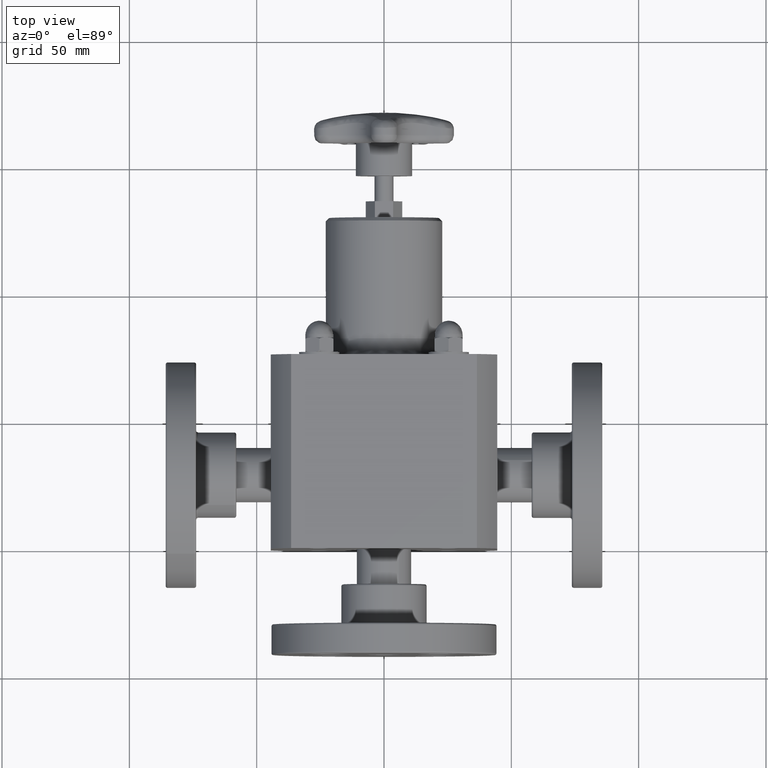
[diagram: clean part render]
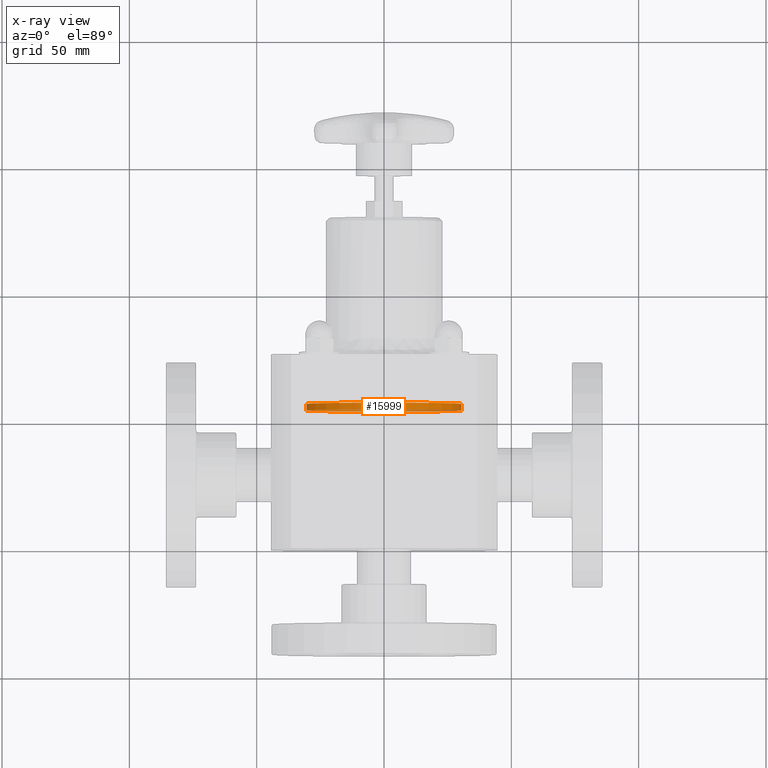
[diagram: x-ray — body ghosted, one internal face saturated and labeled with its STEP entity id]
A machine part, top view, then the same camera in x-ray: the body is ghosted and one INTERNAL B-rep face — a face not visible from any outside direction — is saturated and labeled: STEP entity #15999.
In plain terms, the highlighted cylindrical surface (bore or boss wall) has radius 30.48 mm, axis along (-0, 1, 0).
Its self-contained STEP definition (entity closure, byte-faithful):
#15972=CARTESIAN_POINT('',(-1.099121E-015,2.200000000000000,6.308368E-016));
#15973=DIRECTION('',(-4.996004E-016,1.0,2.867440E-016));
#15974=DIRECTION('',(-1.0,0.0,0.0));
#15975=AXIS2_PLACEMENT_3D('',#15972,#15973,#15974);
#15976=CYLINDRICAL_SURFACE('',#15975,1.200000000000000);
#15977=CARTESIAN_POINT('',(-1.200000000000001,2.250000000000000,5.486538E-016));
#15978=VERTEX_POINT('',#15977);
#15979=CARTESIAN_POINT('',(-1.124101E-015,2.250000000000000,6.451740E-016));
#15980=DIRECTION('',(0.0,-1.0,0.0));
#15981=DIRECTION('',(-1.0,0.0,0.0));
#15982=AXIS2_PLACEMENT_3D('',#15979,#15980,#15981);
#15983=CIRCLE('',#15982,1.200000000000000);
#15984=EDGE_CURVE('',#15978,#15978,#15983,.T.);
#15985=ORIENTED_EDGE('',*,*,#15984,.F.);
#15986=EDGE_LOOP('',(#15985));
#15987=FACE_OUTER_BOUND('',#15986,.T.);
#15988=CARTESIAN_POINT('',(-1.200000000000001,2.150000000000000,5.199794E-016));
#15989=VERTEX_POINT('',#15988);
#15990=CARTESIAN_POINT('',(-1.074141E-015,2.150000000000000,6.164996E-016));
#15991=DIRECTION('',(0.0,1.0,0.0));
#15992=DIRECTION('',(-1.0,0.0,0.0));
#15993=AXIS2_PLACEMENT_3D('',#15990,#15991,#15992);
#15994=CIRCLE('',#15993,1.200000000000000);
#15995=EDGE_CURVE('',#15989,#15989,#15994,.T.);
#15996=ORIENTED_EDGE('',*,*,#15995,.F.);
#15997=EDGE_LOOP('',(#15996));
#15998=FACE_BOUND('',#15997,.T.);
#15999=ADVANCED_FACE('',(#15987,#15998),#15976,.F.);